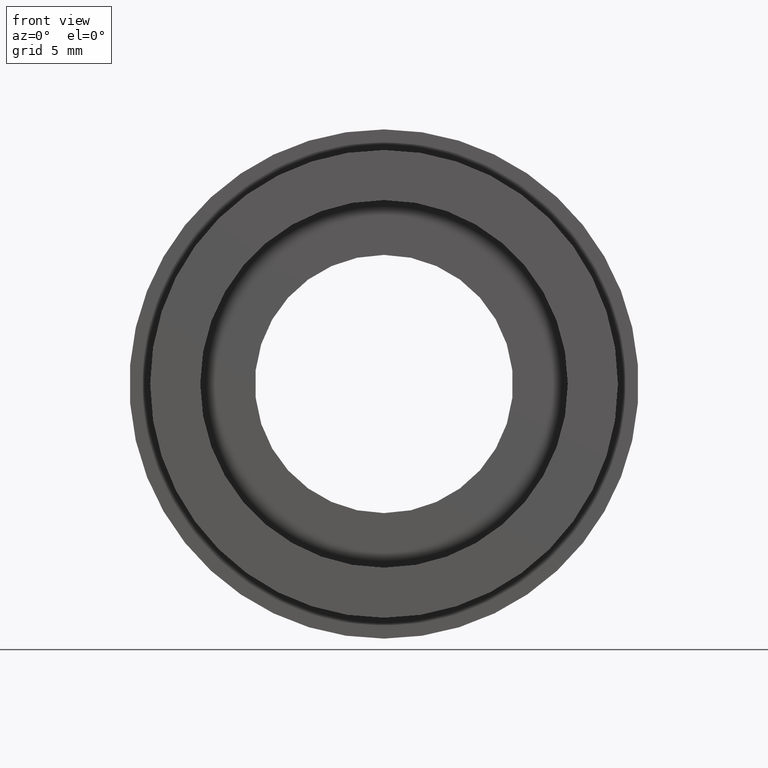
[diagram: clean part render]
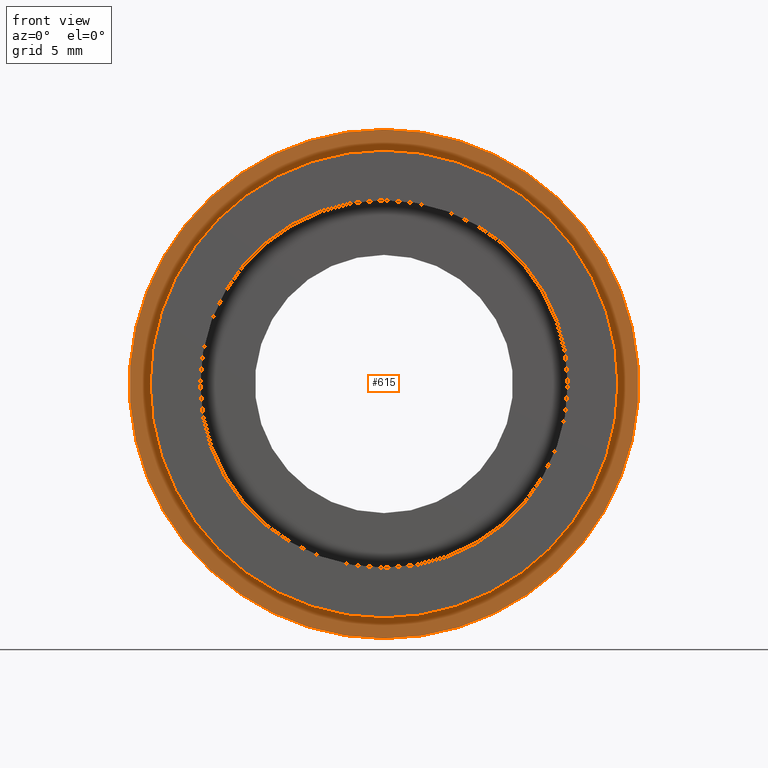
[diagram: same view with one face highlighted and labeled with its STEP entity id]
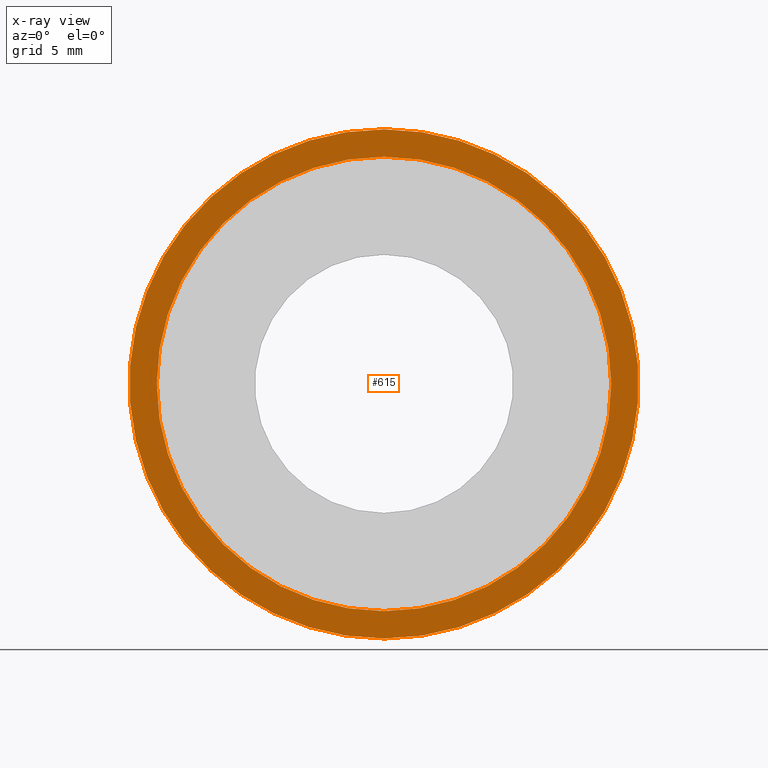
[diagram: x-ray of the same camera — body ghosted, the highlighted face saturated]
A machine part, front view. The second image highlights one B-rep face of the part: STEP entity #615.
The next image is the same camera in x-ray: the body ghosted, the highlighted face saturated — about 0% of this face is hidden behind the body in this view.
In plain terms, the highlighted planar face has unit normal (-0, 1, 0).
Its self-contained STEP definition (entity closure, byte-faithful):
#43 = CARTESIAN_POINT ( 'NONE',  ( 0.0000000000000000000, 5.000000000000000900, 0.0000000000000000000 ) ) ;
#56 = FACE_OUTER_BOUND ( 'NONE', #466, .T. ) ;
#61 = AXIS2_PLACEMENT_3D ( 'NONE', #590, #274, #193 ) ;
#72 = EDGE_CURVE ( 'NONE', #97, #117, #603, .T. ) ;
#74 = AXIS2_PLACEMENT_3D ( 'NONE', #185, #328, #91 ) ;
#91 = DIRECTION ( 'NONE',  ( 0.0000000000000000000, 0.0000000000000000000, 1.000000000000000000 ) ) ;
#97 = VERTEX_POINT ( 'NONE', #136 ) ;
#98 = VERTEX_POINT ( 'NONE', #430 ) ;
#107 = ORIENTED_EDGE ( 'NONE', *, *, #72, .F. ) ;
#117 = VERTEX_POINT ( 'NONE', #138 ) ;
#123 = ORIENTED_EDGE ( 'NONE', *, *, #622, .T. ) ;
#127 = AXIS2_PLACEMENT_3D ( 'NONE', #43, #297, #568 ) ;
#136 = CARTESIAN_POINT ( 'NONE',  ( 0.0000000000000000000, 5.000000000000000900, 19.05000000000000400 ) ) ;
#138 = CARTESIAN_POINT ( 'NONE',  ( 2.332952152375708400E-015, 5.000000000000000900, -19.05000000000000400 ) ) ;
#150 = CIRCLE ( 'NONE', #378, 19.05000000000000400 ) ;
#184 = CARTESIAN_POINT ( 'NONE',  ( 0.0000000000000000000, 5.000000000000000900, 0.0000000000000000000 ) ) ;
#185 = CARTESIAN_POINT ( 'NONE',  ( 0.0000000000000000000, 5.000000000000000900, 0.0000000000000000000 ) ) ;
#193 = DIRECTION ( 'NONE',  ( 0.0000000000000000000, 0.0000000000000000000, 1.000000000000000000 ) ) ;
#194 = CIRCLE ( 'NONE', #468, 17.00000000000000000 ) ;
#199 = CARTESIAN_POINT ( 'NONE',  ( 0.0000000000000000000, 5.000000000000000900, 17.00000000000000000 ) ) ;
#219 = DIRECTION ( 'NONE',  ( -0.0000000000000000000, 1.000000000000000000, -0.0000000000000000000 ) ) ;
#250 = PLANE ( 'NONE',  #61 ) ;
#260 = ORIENTED_EDGE ( 'NONE', *, *, #530, .T. ) ;
#273 = EDGE_CURVE ( 'NONE', #117, #97, #150, .T. ) ;
#274 = DIRECTION ( 'NONE',  ( -0.0000000000000000000, 1.000000000000000000, 0.0000000000000000000 ) ) ;
#297 = DIRECTION ( 'NONE',  ( -0.0000000000000000000, 1.000000000000000000, -0.0000000000000000000 ) ) ;
#306 = CARTESIAN_POINT ( 'NONE',  ( 0.0000000000000000000, 5.000000000000000900, 0.0000000000000000000 ) ) ;
#311 = DIRECTION ( 'NONE',  ( 0.0000000000000000000, 0.0000000000000000000, 1.000000000000000000 ) ) ;
#328 = DIRECTION ( 'NONE',  ( -0.0000000000000000000, 1.000000000000000000, -0.0000000000000000000 ) ) ;
#364 = EDGE_LOOP ( 'NONE', ( #260, #123 ) ) ;
#365 = VERTEX_POINT ( 'NONE', #199 ) ;
#378 = AXIS2_PLACEMENT_3D ( 'NONE', #306, #404, #418 ) ;
#404 = DIRECTION ( 'NONE',  ( -0.0000000000000000000, 1.000000000000000000, -0.0000000000000000000 ) ) ;
#418 = DIRECTION ( 'NONE',  ( 0.0000000000000000000, 0.0000000000000000000, 1.000000000000000000 ) ) ;
#430 = CARTESIAN_POINT ( 'NONE',  ( 2.081899558550500300E-015, 5.000000000000000900, -17.00000000000000000 ) ) ;
#466 = EDGE_LOOP ( 'NONE', ( #107, #589 ) ) ;
#468 = AXIS2_PLACEMENT_3D ( 'NONE', #184, #219, #311 ) ;
#513 = CIRCLE ( 'NONE', #74, 17.00000000000000000 ) ;
#530 = EDGE_CURVE ( 'NONE', #365, #98, #194, .T. ) ;
#538 = FACE_BOUND ( 'NONE', #364, .T. ) ;
#568 = DIRECTION ( 'NONE',  ( 0.0000000000000000000, 0.0000000000000000000, 1.000000000000000000 ) ) ;
#589 = ORIENTED_EDGE ( 'NONE', *, *, #273, .F. ) ;
#590 = CARTESIAN_POINT ( 'NONE',  ( 19.05000000000000400, 5.000000000000000000, 0.0000000000000000000 ) ) ;
#603 = CIRCLE ( 'NONE', #127, 19.05000000000000400 ) ;
#615 = ADVANCED_FACE ( 'NONE', ( #56, #538 ), #250, .F. ) ;
#622 = EDGE_CURVE ( 'NONE', #98, #365, #513, .T. ) ;